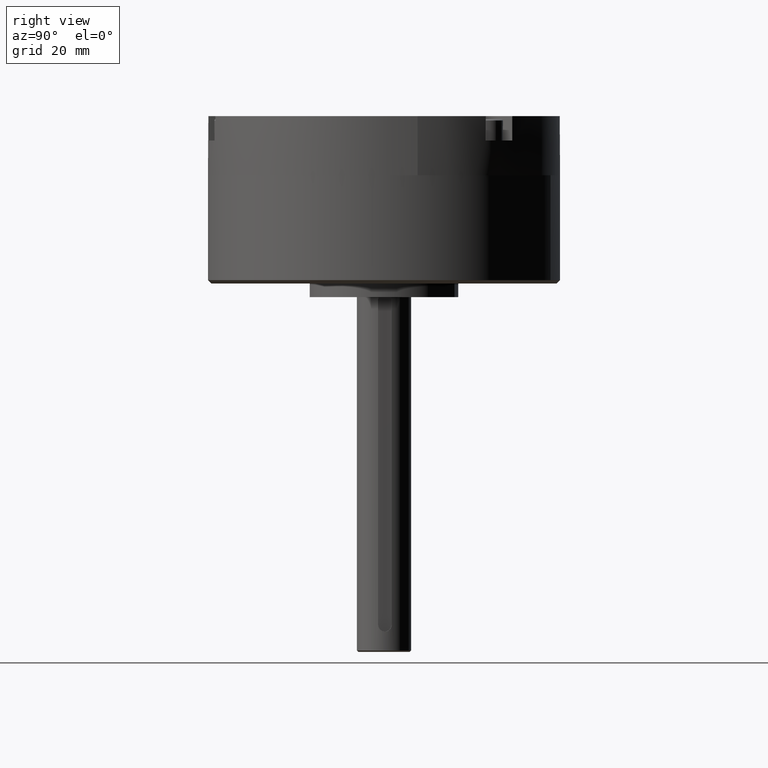
[diagram: clean part render]
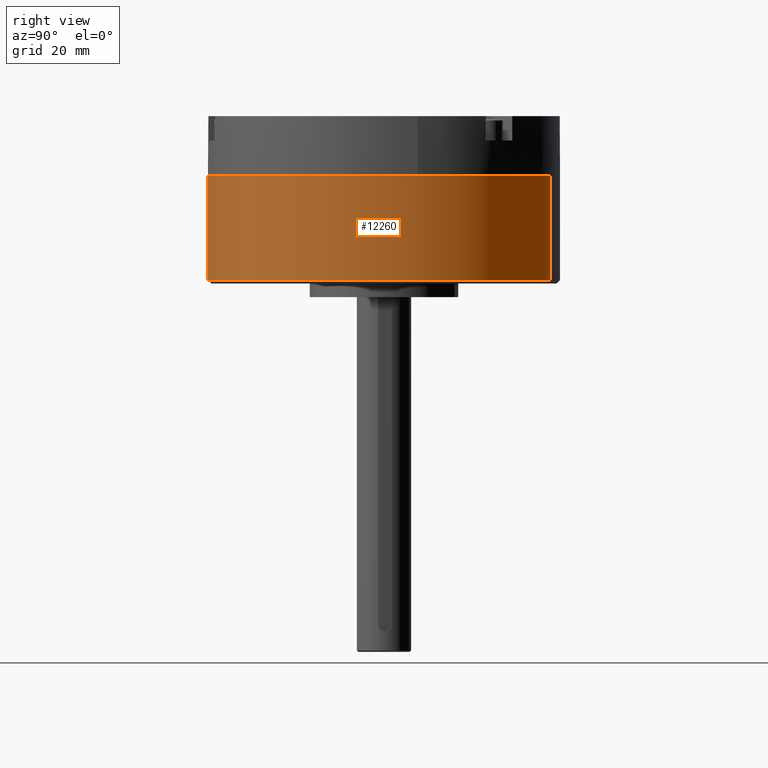
[diagram: same view with one face highlighted and labeled with its STEP entity id]
A machine part, right view. The second image highlights one B-rep face of the part: STEP entity #12260.
In plain terms, the highlighted cylindrical surface (partial cylindrical patch) has radius 41.275 mm, axis along (0, 0, -1).
Its self-contained STEP definition (entity closure, byte-faithful):
#458 = CARTESIAN_POINT ( 'NONE',  ( -1.625000000000000200, 1.990051048614448900E-016, 0.9687499999999981100 ) ) ;
#910 = CARTESIAN_POINT ( 'NONE',  ( 1.625000000000000200, 0.0000000000000000000, 0.9687499999999981100 ) ) ;
#2663 = AXIS2_PLACEMENT_3D ( 'NONE', #2699, #2698, #2697 ) ;
#2680 = CARTESIAN_POINT ( 'NONE',  ( -1.625000000000000200, 1.990051048614448900E-016, 0.0000000000000000000 ) ) ;
#2681 = LINE ( 'NONE', #2680, #2749 ) ;
#2697 = DIRECTION ( 'NONE',  ( -1.000000000000000000, 0.0000000000000000000, 0.0000000000000000000 ) ) ;
#2698 = DIRECTION ( 'NONE',  ( 0.0000000000000000000, 0.0000000000000000000, -1.000000000000000000 ) ) ;
#2699 = CARTESIAN_POINT ( 'NONE',  ( 0.0000000000000000000, 0.0000000000000000000, 0.9687499999999981100 ) ) ;
#2704 = DIRECTION ( 'NONE',  ( -1.000000000000000000, 0.0000000000000000000, 0.0000000000000000000 ) ) ;
#2705 = DIRECTION ( 'NONE',  ( 0.0000000000000000000, 0.0000000000000000000, 1.000000000000000000 ) ) ;
#2706 = CARTESIAN_POINT ( 'NONE',  ( 0.0000000000000000000, 0.0000000000000000000, 0.0000000000000000000 ) ) ;
#2707 = AXIS2_PLACEMENT_3D ( 'NONE', #2706, #2705, #2704 ) ;
#2708 = LINE ( 'NONE', #2743, #2751 ) ;
#2709 = CIRCLE ( 'NONE', #2707, 1.625000000000000200 ) ;
#2714 = CIRCLE ( 'NONE', #2663, 1.625000000000000200 ) ;
#2724 = CYLINDRICAL_SURFACE ( 'NONE', #2781, 1.625000000000000200 ) ;
#2726 = CARTESIAN_POINT ( 'NONE',  ( 0.0000000000000000000, 0.0000000000000000000, 0.0000000000000000000 ) ) ;
#2727 = CARTESIAN_POINT ( 'NONE',  ( -1.625000000000000200, 1.990051048614448900E-016, 0.0000000000000000000 ) ) ;
#2728 = FACE_OUTER_BOUND ( 'NONE', #12261, .T. ) ;
#2729 = DIRECTION ( 'NONE',  ( 0.0000000000000000000, 0.0000000000000000000, 1.000000000000000000 ) ) ;
#2743 = CARTESIAN_POINT ( 'NONE',  ( 1.625000000000000200, 0.0000000000000000000, 0.0000000000000000000 ) ) ;
#2744 = DIRECTION ( 'NONE',  ( 0.0000000000000000000, 0.0000000000000000000, 1.000000000000000000 ) ) ;
#2749 = VECTOR ( 'NONE', #2744, 39.37007874015748100 ) ;
#2750 = DIRECTION ( 'NONE',  ( 0.0000000000000000000, 0.0000000000000000000, 1.000000000000000000 ) ) ;
#2751 = VECTOR ( 'NONE', #2750, 39.37007874015748100 ) ;
#2780 = DIRECTION ( 'NONE',  ( 1.000000000000000000, 0.0000000000000000000, 0.0000000000000000000 ) ) ;
#2781 = AXIS2_PLACEMENT_3D ( 'NONE', #2726, #2729, #2780 ) ;
#2782 = CARTESIAN_POINT ( 'NONE',  ( 1.625000000000000200, 0.0000000000000000000, 0.0000000000000000000 ) ) ;
#11132 = VERTEX_POINT ( 'NONE', #458 ) ;
#11389 = VERTEX_POINT ( 'NONE', #910 ) ;
#12236 = EDGE_CURVE ( 'NONE', #12264, #12263, #2709, .T. ) ;
#12237 = ORIENTED_EDGE ( 'NONE', *, *, #12238, .T. ) ;
#12238 = EDGE_CURVE ( 'NONE', #11389, #11132, #2714, .T. ) ;
#12239 = ORIENTED_EDGE ( 'NONE', *, *, #12236, .T. ) ;
#12240 = ORIENTED_EDGE ( 'NONE', *, *, #12251, .T. ) ;
#12243 = ORIENTED_EDGE ( 'NONE', *, *, #12248, .F. ) ;
#12248 = EDGE_CURVE ( 'NONE', #12264, #11132, #2681, .T. ) ;
#12251 = EDGE_CURVE ( 'NONE', #12263, #11389, #2708, .T. ) ;
#12260 = ADVANCED_FACE ( 'NONE', ( #2728 ), #2724, .T. ) ;
#12261 = EDGE_LOOP ( 'NONE', ( #12243, #12239, #12240, #12237 ) ) ;
#12263 = VERTEX_POINT ( 'NONE', #2782 ) ;
#12264 = VERTEX_POINT ( 'NONE', #2727 ) ;